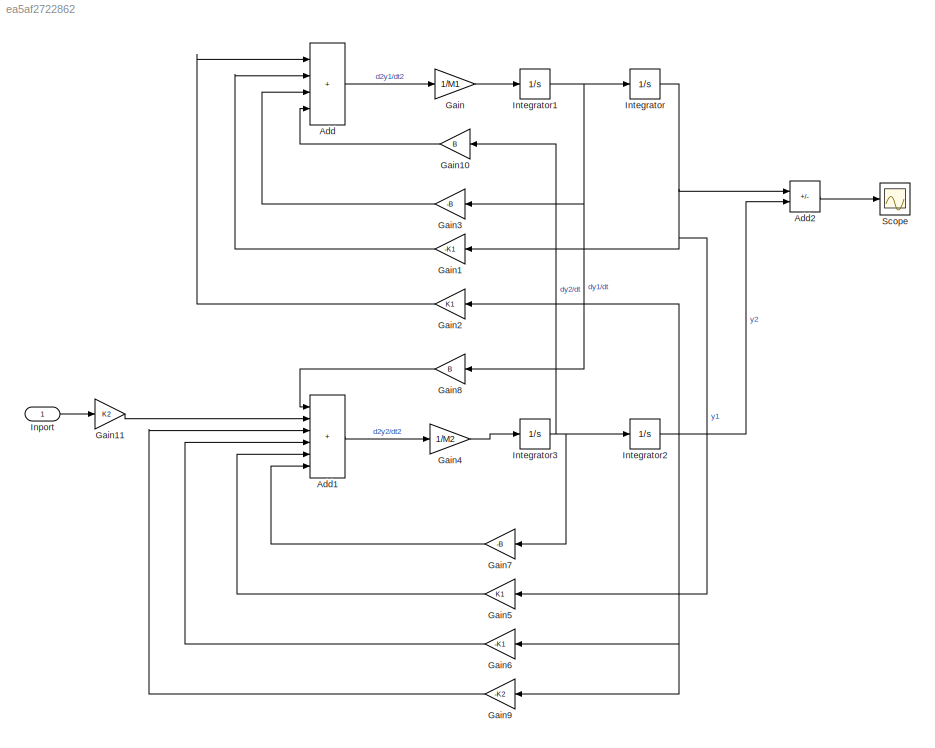
MODEL slx_ea5af2722862
KIND model
CONFIG AbsTol = auto
CONFIG EnableMultiTasking = off
CONFIG FixedStep = auto
CONFIG MaxStep = auto
CONFIG MinStep = auto
CONFIG PostLoadFcn = M1=2000;\nM2=500;\nK1=5000;\nK2=250000;\nB=500;\n
CONFIG RelTol = 1e-3
CONFIG SampleTimeConstraint = Unconstrained
CONFIG Solver = VariableStepAuto
CONFIG SolverName = VariableStepAuto
CONFIG StartTime = 0.0
CONFIG StopTime = 100
BLOCK [Sum] Add
  IconShape = rectangular
  Inputs = ++++
  Ports = [4, 1]
BLOCK [Sum] Add1
  IconShape = rectangular
  Inputs = ++++++
  Ports = [6, 1]
BLOCK [Sum] Add2
  IconShape = rectangular
  Inputs = +-
  Ports = [2, 1]
BLOCK [Gain] Gain
  Gain = 1/M1
BLOCK [Gain] Gain1
  Gain = -K1
  NameLocation = top
BLOCK [Gain] Gain10
  Gain = B
  NameLocation = top
BLOCK [Gain] Gain11
  Gain = K2
BLOCK [Gain] Gain2
  Gain = K1
  NameLocation = top
BLOCK [Gain] Gain3
  Gain = -B
  NameLocation = top
BLOCK [Gain] Gain4
  Gain = 1/M2
BLOCK [Gain] Gain5
  Gain = K1
  NameLocation = top
BLOCK [Gain] Gain6
  Gain = -K1
  NameLocation = top
BLOCK [Gain] Gain7
  Gain = -B
  NameLocation = top
BLOCK [Gain] Gain8
  Gain = B
  NameLocation = top
BLOCK [Gain] Gain9
  Gain = -K2
  NameLocation = top
BLOCK [Inport] Inport
BLOCK [Integrator] Integrator
  Ports = [1, 1]
BLOCK [Integrator] Integrator1
  Ports = [1, 1]
BLOCK [Integrator] Integrator2
  Ports = [1, 1]
BLOCK [Integrator] Integrator3
  Ports = [1, 1]
BLOCK [Scope] Scope
  Floating = off
  NumInputPorts = 1
  Ports = [1]
  ScopeSpecificationString = Simulink.scopes.TimeScopeBlockCfg('CurrentConfiguration', extmgr.ConfigurationSet(extmgr.Configuration('Core','General UI',true),extmgr.Configuration('Core','Source UI',true),extmgr.Configuration('Sources','WiredSimulink',true),extmgr.Configuration('Visuals','Time Domain',true,'SerializedDisplays',{struct('MinYLimReal','-4.43139','MaxYLimReal','2.97409','YLabelReal','','MinYLimMag','0.00000','MaxY...<+1324ch>
LINE Add1:1 -> Gain4:1
LINE Add2:1 -> Scope:1
LINE Add:1 -> Gain:1
LINE Gain10:1 -> Add:4
LINE Gain11:1 -> Add1:2
LINE Gain1:1 -> Add:2
LINE Gain2:1 -> Add:1
LINE Gain3:1 -> Add:3
LINE Gain4:1 -> Integrator3:1
LINE Gain5:1 -> Add1:5
LINE Gain6:1 -> Add1:4
LINE Gain7:1 -> Add1:6
LINE Gain8:1 -> Add1:1
LINE Gain9:1 -> Add1:3
LINE Gain:1 -> Integrator1:1
LINE Inport:1 -> Gain11:1
NET Integrator1:1 -> Gain3:1, Gain8:1, Integrator:1
NET Integrator2:1 -> Add2:2, Gain2:1, Gain6:1, Gain9:1
NET Integrator3:1 -> Gain10:1, Gain7:1, Integrator2:1
NET Integrator:1 -> Add2:1, Gain1:1, Gain5:1
note: NET lines group one-source signal fan-out (src -> all destinations, sorted); 1:1 wires keep LINE
